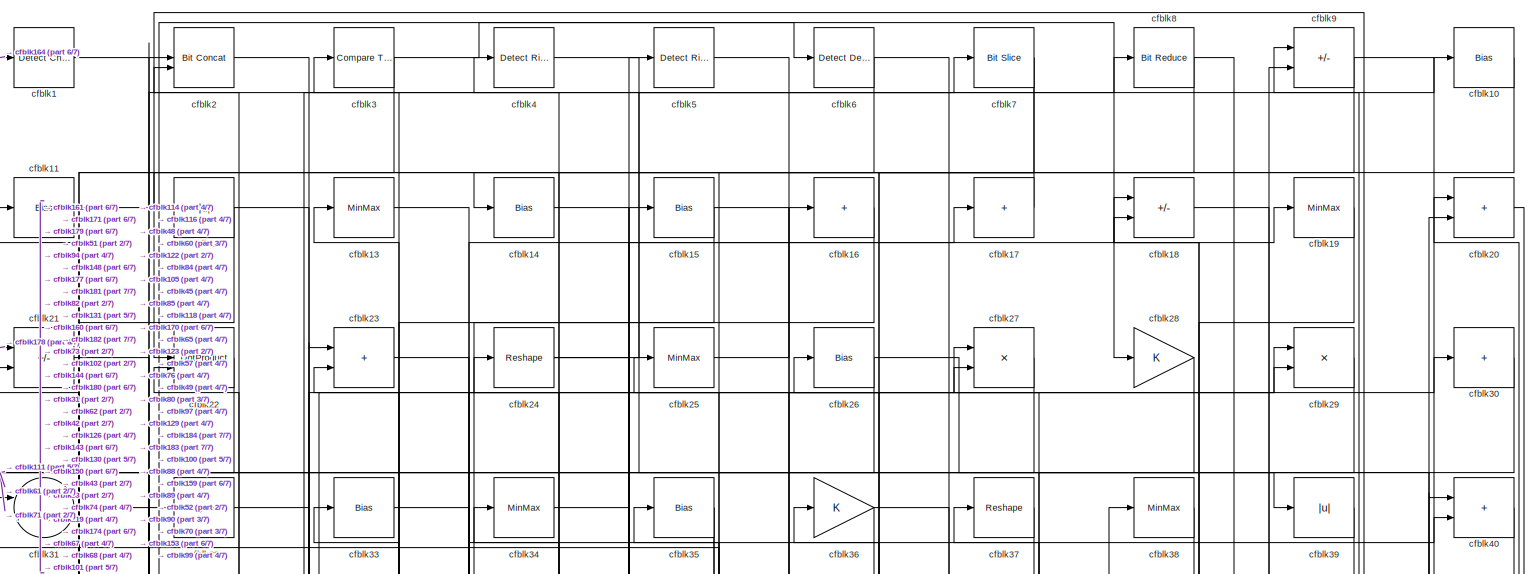
[diagram: root canvas - part 1/7, full width, top band]
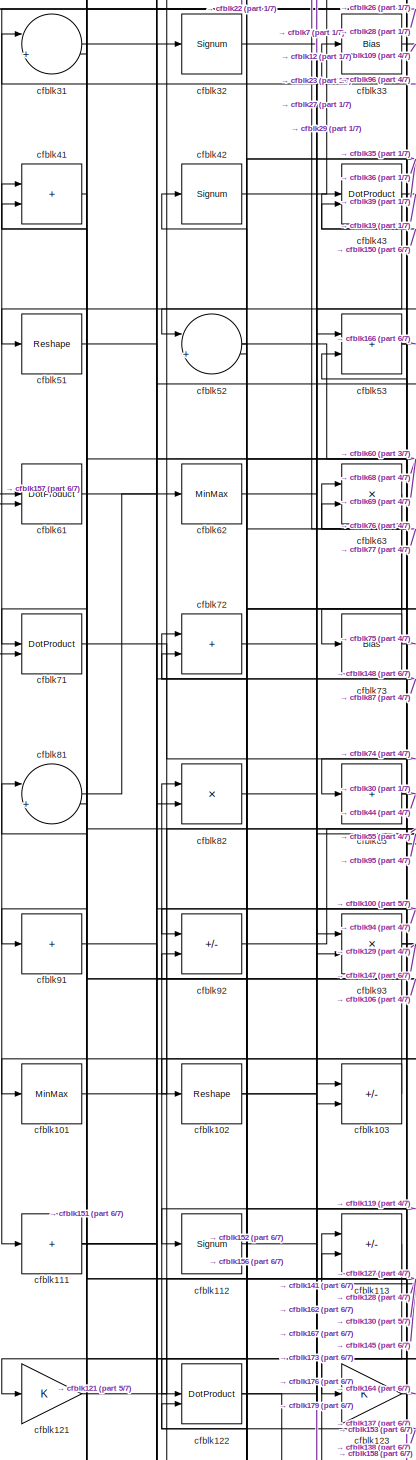
[diagram: root canvas - part 2/7, middle left region]
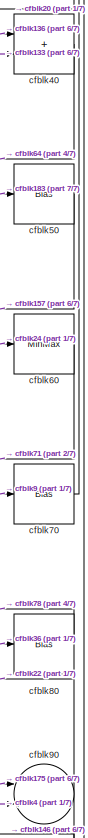
[diagram: root canvas - part 3/7, top right region]
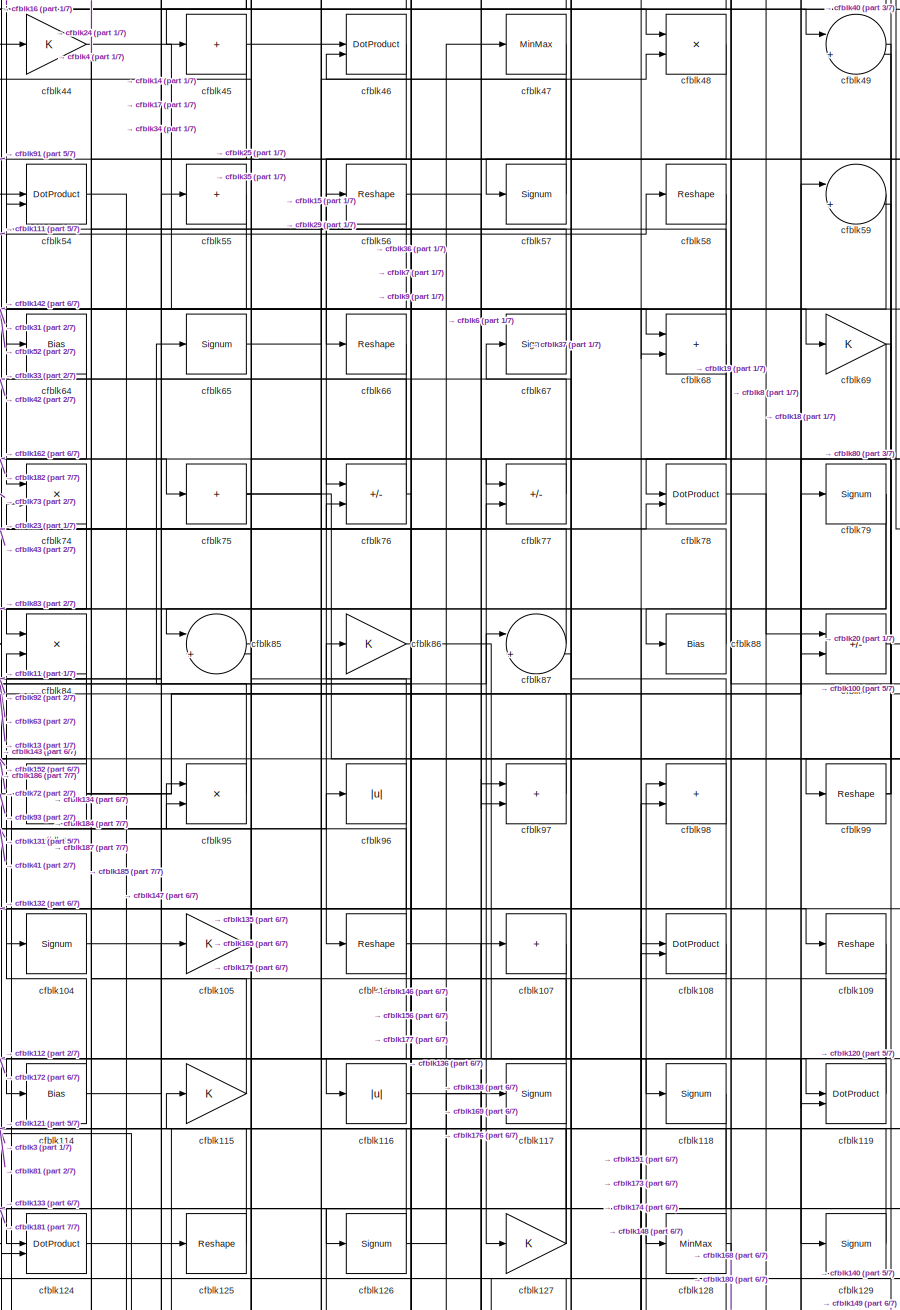
[diagram: root canvas - part 4/7, central region]
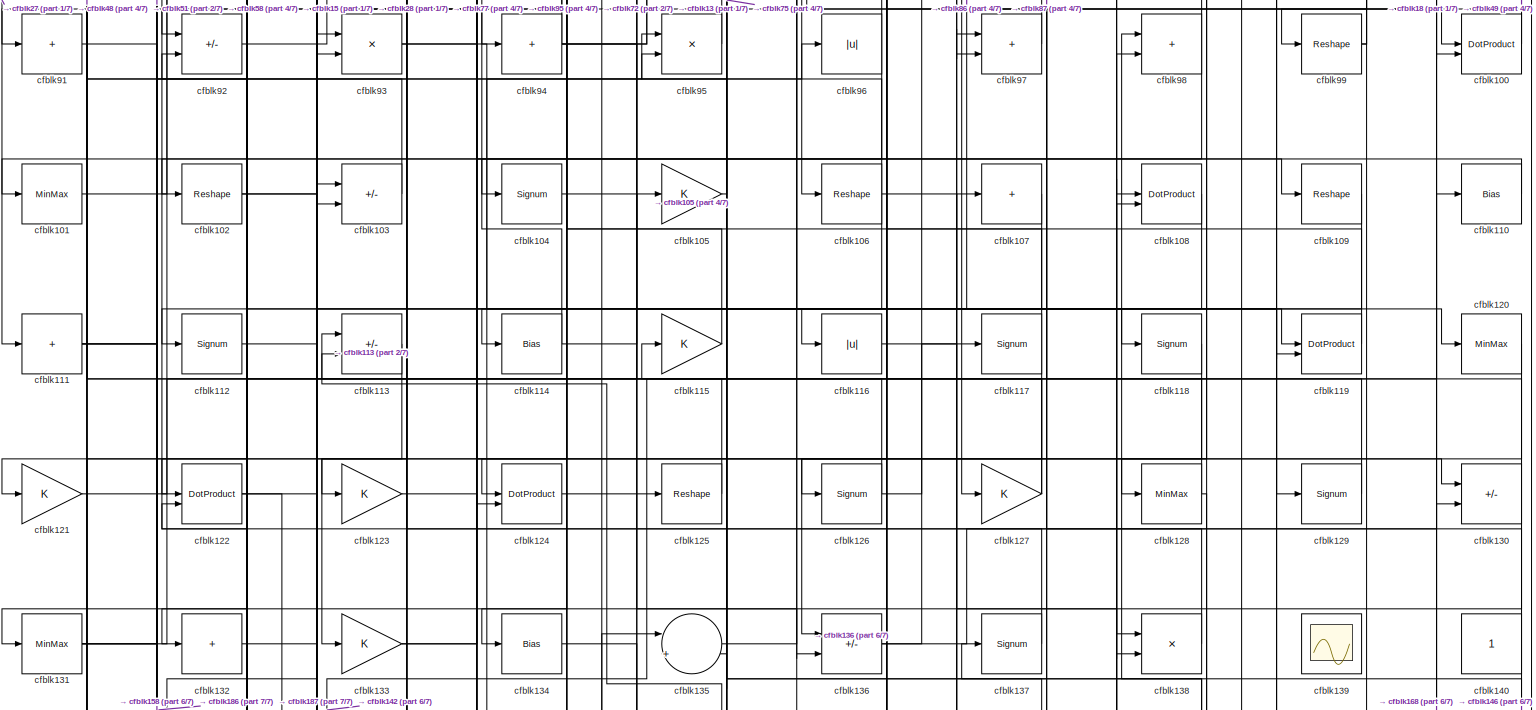
[diagram: root canvas - part 5/7, full width, middle band]
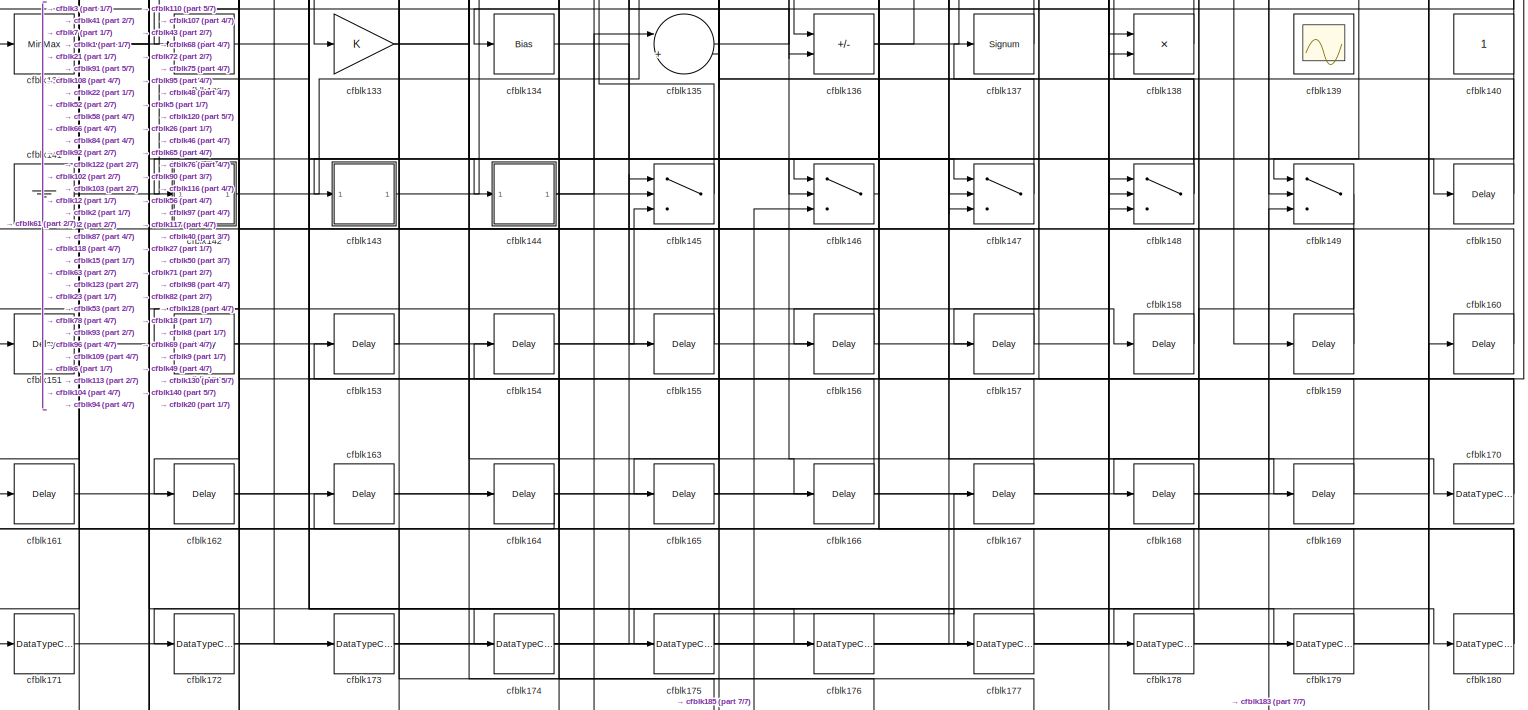
[diagram: root canvas - part 6/7, full width, bottom band]
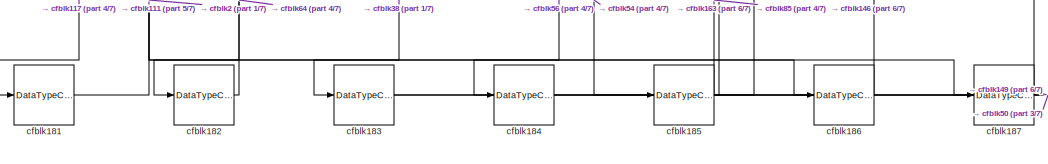
[diagram: root canvas - part 7/7, bottom center region]
MODEL slx_1782051ab085
KIND model
CONFIG AbsTol = auto
CONFIG EnableMultiTasking = off
CONFIG FixedStep = auto
CONFIG MaxStep = auto
CONFIG MinStep = auto
CONFIG RelTol = 1e-3
CONFIG SampleTimeConstraint = Unconstrained
CONFIG SolverName = VariableStepAuto
CONFIG StartTime = 0.0
CONFIG StopTime = 10.0
BLOCK [Reference] cfblk1  REF=simulink/Logic and Bit
Operations/Detect
Change
  LibrarySourceBlock = hdlsllib/Logic and Bit\nOperations/Detect\nChange
  SourceBlock = simulink/Logic and Bit\nOperations/Detect\nChange
  SourceType = Detect Change
BLOCK [Bias] cfblk10
  Bias = 0.0
  SaturateOnIntegerOverflow = off
BLOCK [DotProduct] cfblk100
  OutDataTypeStr = Inherit: Inherit via internal rule
BLOCK [MinMax] cfblk101
BLOCK [Reshape] cfblk102
BLOCK [Sum] cfblk103
  IconShape = rectangular
  Inputs = +-
BLOCK [Signum] cfblk104
BLOCK [Gain] cfblk105
BLOCK [Reshape] cfblk106
BLOCK [Sum] cfblk107
  IconShape = rectangular
  Inputs = +
BLOCK [DotProduct] cfblk108
  OutDataTypeStr = Inherit: Inherit via internal rule
BLOCK [Reshape] cfblk109
BLOCK [Bias] cfblk11
  Bias = 0.0
  SaturateOnIntegerOverflow = off
BLOCK [Bias] cfblk110
  Bias = 0.0
  SaturateOnIntegerOverflow = off
BLOCK [Sum] cfblk111
  IconShape = rectangular
  Inputs = +
BLOCK [Signum] cfblk112
BLOCK [Sum] cfblk113
  IconShape = rectangular
  Inputs = +-
BLOCK [Bias] cfblk114
  Bias = 0.0
  SaturateOnIntegerOverflow = off
BLOCK [Gain] cfblk115
BLOCK [Abs] cfblk116
  SaturateOnIntegerOverflow = off
BLOCK [Signum] cfblk117
BLOCK [Signum] cfblk118
BLOCK [DotProduct] cfblk119
  OutDataTypeStr = Inherit: Inherit via internal rule
BLOCK [Abs] cfblk12
  SaturateOnIntegerOverflow = off
BLOCK [MinMax] cfblk120
BLOCK [Gain] cfblk121
BLOCK [DotProduct] cfblk122
  OutDataTypeStr = Inherit: Inherit via internal rule
BLOCK [Gain] cfblk123
BLOCK [DotProduct] cfblk124
  OutDataTypeStr = Inherit: Inherit via internal rule
BLOCK [Reshape] cfblk125
BLOCK [Signum] cfblk126
BLOCK [Gain] cfblk127
BLOCK [MinMax] cfblk128
BLOCK [Signum] cfblk129
BLOCK [MinMax] cfblk13
BLOCK [Sum] cfblk130
  IconShape = rectangular
  Inputs = +-
BLOCK [MinMax] cfblk131
BLOCK [Sum] cfblk132
  IconShape = rectangular
  Inputs = +
BLOCK [Gain] cfblk133
BLOCK [Bias] cfblk134
  Bias = 0.0
  SaturateOnIntegerOverflow = off
BLOCK [Sum] cfblk135
  Inputs = |++
BLOCK [Sum] cfblk136
  IconShape = rectangular
  Inputs = +-
BLOCK [Signum] cfblk137
BLOCK [Product] cfblk138
  Inputs = */
  RndMeth = Zero
  SaturateOnIntegerOverflow = on
BLOCK [Scope] cfblk139
  Floating = on
  NumInputPorts = 1
  ScopeSpecificationString = Simulink.scopes.TimeScopeBlockCfg('CurrentConfiguration', extmgr.ConfigurationSet(extmgr.Configuration('Core','General UI',true,'FigureColor',[0.156862745098039 0.156862745098039 0.156862745098039]),extmgr.Configuration('Core','Source UI',true),extmgr.Configuration('Sources','WiredSimulink',true,'DataLoggingVariableName','ScopeData1','DataLoggingSaveFormat','StructureWithTime','DataLoggingLimitDat...<+2713ch>
BLOCK [Bias] cfblk14
  Bias = 0.0
  SaturateOnIntegerOverflow = off
BLOCK [Constant] cfblk140
  SampleTime = -1
BLOCK [Ground] cfblk141
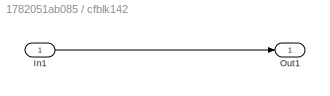
BLOCK [SubSystem] cfblk142
  LibrarySourceBlock = hdlsllib/Ports &\nSubsystems/Subsystem
BLOCK [Inport] cfblk142/In1
BLOCK [Outport] cfblk142/Out1
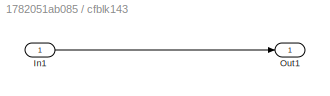
BLOCK [SubSystem] cfblk143
  LibrarySourceBlock = hdlsllib/Ports &\nSubsystems/Subsystem
BLOCK [Inport] cfblk143/In1
BLOCK [Outport] cfblk143/Out1
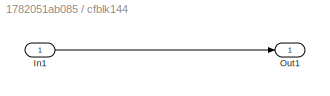
BLOCK [SubSystem] cfblk144
  LibrarySourceBlock = hdlsllib/Ports &\nSubsystems/Subsystem
BLOCK [Inport] cfblk144/In1
BLOCK [Outport] cfblk144/Out1
BLOCK [Switch] cfblk145
  InputSameDT = off
  SaturateOnIntegerOverflow = off
BLOCK [Switch] cfblk146
  InputSameDT = off
  SaturateOnIntegerOverflow = off
BLOCK [Switch] cfblk147
  InputSameDT = off
  SaturateOnIntegerOverflow = off
BLOCK [Switch] cfblk148
  InputSameDT = off
  SaturateOnIntegerOverflow = off
BLOCK [Switch] cfblk149
  InputSameDT = off
  SaturateOnIntegerOverflow = off
BLOCK [Bias] cfblk15
  Bias = 0.0
  SaturateOnIntegerOverflow = off
BLOCK [Delay] cfblk150
  InputPortMap = u0
  SampleTime = 1
BLOCK [Delay] cfblk151
  InputPortMap = u0
  SampleTime = 1
BLOCK [Delay] cfblk152
  InputPortMap = u0
  SampleTime = 1
BLOCK [Delay] cfblk153
  InputPortMap = u0
  SampleTime = 1
BLOCK [Delay] cfblk154
  InputPortMap = u0
  SampleTime = 1
BLOCK [Delay] cfblk155
  InputPortMap = u0
  SampleTime = 1
BLOCK [Delay] cfblk156
  InputPortMap = u0
  SampleTime = 1
BLOCK [Delay] cfblk157
  InputPortMap = u0
  SampleTime = 1
BLOCK [Delay] cfblk158
  InputPortMap = u0
  SampleTime = 1
BLOCK [Delay] cfblk159
  InputPortMap = u0
  SampleTime = 1
BLOCK [Sum] cfblk16
  IconShape = rectangular
  Inputs = +
BLOCK [Delay] cfblk160
  InputPortMap = u0
  SampleTime = 1
BLOCK [Delay] cfblk161
  InputPortMap = u0
  SampleTime = 1
BLOCK [Delay] cfblk162
  InputPortMap = u0
  SampleTime = 1
BLOCK [Delay] cfblk163
  InputPortMap = u0
  SampleTime = 1
BLOCK [Delay] cfblk164
  InputPortMap = u0
  SampleTime = 1
BLOCK [Delay] cfblk165
  InputPortMap = u0
  SampleTime = 1
BLOCK [Delay] cfblk166
  InputPortMap = u0
  SampleTime = 1
BLOCK [Delay] cfblk167
  InputPortMap = u0
  SampleTime = 1
BLOCK [Delay] cfblk168
  InputPortMap = u0
  SampleTime = 1
BLOCK [Delay] cfblk169
  InputPortMap = u0
  SampleTime = 1
BLOCK [Sum] cfblk17
  IconShape = rectangular
  Inputs = +
BLOCK [DataTypeConversion] cfblk170
  RndMeth = Floor
  SaturateOnIntegerOverflow = off
BLOCK [DataTypeConversion] cfblk171
  OutDataTypeStr = uint8
  RndMeth = Floor
  SaturateOnIntegerOverflow = off
BLOCK [DataTypeConversion] cfblk172
  OutDataTypeStr = uint8
  RndMeth = Floor
  SaturateOnIntegerOverflow = off
BLOCK [DataTypeConversion] cfblk173
  OutDataTypeStr = uint8
  RndMeth = Floor
  SaturateOnIntegerOverflow = off
BLOCK [DataTypeConversion] cfblk174
  OutDataTypeStr = uint8
  RndMeth = Floor
  SaturateOnIntegerOverflow = off
BLOCK [DataTypeConversion] cfblk175
  RndMeth = Floor
  SaturateOnIntegerOverflow = off
BLOCK [DataTypeConversion] cfblk176
  OutDataTypeStr = uint8
  RndMeth = Floor
  SaturateOnIntegerOverflow = off
BLOCK [DataTypeConversion] cfblk177
  OutDataTypeStr = uint8
  RndMeth = Floor
  SaturateOnIntegerOverflow = off
BLOCK [DataTypeConversion] cfblk178
  OutDataTypeStr = uint8
  RndMeth = Floor
  SaturateOnIntegerOverflow = off
BLOCK [DataTypeConversion] cfblk179
  OutDataTypeStr = uint8
  RndMeth = Floor
  SaturateOnIntegerOverflow = off
BLOCK [Sum] cfblk18
  IconShape = rectangular
  Inputs = +-
BLOCK [DataTypeConversion] cfblk180
  RndMeth = Floor
  SaturateOnIntegerOverflow = off
BLOCK [DataTypeConversion] cfblk181
  OutDataTypeStr = uint8
  RndMeth = Floor
  SaturateOnIntegerOverflow = off
BLOCK [DataTypeConversion] cfblk182
  OutDataTypeStr = uint8
  RndMeth = Floor
  SaturateOnIntegerOverflow = off
BLOCK [DataTypeConversion] cfblk183
  RndMeth = Floor
  SaturateOnIntegerOverflow = off
BLOCK [DataTypeConversion] cfblk184
  OutDataTypeStr = uint8
  RndMeth = Floor
  SaturateOnIntegerOverflow = off
BLOCK [DataTypeConversion] cfblk185
  RndMeth = Floor
  SaturateOnIntegerOverflow = off
BLOCK [DataTypeConversion] cfblk186
  OutDataTypeStr = uint8
  RndMeth = Floor
  SaturateOnIntegerOverflow = off
BLOCK [DataTypeConversion] cfblk187
  OutDataTypeStr = uint8
  RndMeth = Floor
  SaturateOnIntegerOverflow = off
BLOCK [MinMax] cfblk19
BLOCK [Reference] cfblk2  REF=hdlsllib/Logic and Bit
Operations/Bit Concat
  SourceBlock = hdlsllib/Logic and Bit\nOperations/Bit Concat
  SourceType = Bit Concat
BLOCK [Sum] cfblk20
  IconShape = rectangular
BLOCK [Sum] cfblk21
  IconShape = rectangular
  Inputs = +-
BLOCK [DotProduct] cfblk22
  OutDataTypeStr = Inherit: Inherit via internal rule
BLOCK [Sum] cfblk23
  IconShape = rectangular
BLOCK [Reshape] cfblk24
BLOCK [MinMax] cfblk25
BLOCK [Bias] cfblk26
  Bias = 0.0
  SaturateOnIntegerOverflow = off
BLOCK [Product] cfblk27
  Inputs = */
  RndMeth = Zero
  SaturateOnIntegerOverflow = on
BLOCK [Gain] cfblk28
BLOCK [Product] cfblk29
  Inputs = */
  RndMeth = Zero
  SaturateOnIntegerOverflow = on
BLOCK [Reference] cfblk3  REF=hdlsllib/Logic and Bit
Operations/Compare
To Constant
  SourceBlock = hdlsllib/Logic and Bit\nOperations/Compare\nTo Constant
  SourceType = Compare To Constant
BLOCK [Sum] cfblk30
  IconShape = rectangular
  Inputs = +
BLOCK [Sum] cfblk31
  Inputs = |++
BLOCK [Signum] cfblk32
BLOCK [Bias] cfblk33
  Bias = 0.0
  SaturateOnIntegerOverflow = off
BLOCK [MinMax] cfblk34
BLOCK [Bias] cfblk35
  Bias = 0.0
  SaturateOnIntegerOverflow = off
BLOCK [Gain] cfblk36
BLOCK [Reshape] cfblk37
BLOCK [MinMax] cfblk38
BLOCK [Abs] cfblk39
  SaturateOnIntegerOverflow = off
BLOCK [Reference] cfblk4  REF=hdlsllib/Logic and Bit
Operations/Detect Rise
Nonnegative
  SourceBlock = hdlsllib/Logic and Bit\nOperations/Detect Rise\nNonnegative
  SourceType = Detect Rise Nonnegative
BLOCK [Sum] cfblk40
  IconShape = rectangular
BLOCK [Sum] cfblk41
  IconShape = rectangular
BLOCK [Signum] cfblk42
BLOCK [DotProduct] cfblk43
  OutDataTypeStr = Inherit: Inherit via internal rule
BLOCK [Gain] cfblk44
BLOCK [Sum] cfblk45
  IconShape = rectangular
  Inputs = +
BLOCK [DotProduct] cfblk46
  OutDataTypeStr = Inherit: Inherit via internal rule
BLOCK [MinMax] cfblk47
BLOCK [Product] cfblk48
  Inputs = */
  RndMeth = Zero
  SaturateOnIntegerOverflow = on
BLOCK [Sum] cfblk49
  Inputs = |++
BLOCK [Reference] cfblk5  REF=hdlsllib/Logic and Bit
Operations/Detect Rise
Nonnegative
  SourceBlock = hdlsllib/Logic and Bit\nOperations/Detect Rise\nNonnegative
  SourceType = Detect Rise Nonnegative
BLOCK [Bias] cfblk50
  Bias = 0.0
  SaturateOnIntegerOverflow = off
BLOCK [Reshape] cfblk51
BLOCK [Sum] cfblk52
  Inputs = |++
BLOCK [Sum] cfblk53
  IconShape = rectangular
BLOCK [DotProduct] cfblk54
  OutDataTypeStr = Inherit: Inherit via internal rule
BLOCK [Sum] cfblk55
  IconShape = rectangular
  Inputs = +
BLOCK [Reshape] cfblk56
BLOCK [Signum] cfblk57
BLOCK [Reshape] cfblk58
BLOCK [Sum] cfblk59
  Inputs = |++
BLOCK [Reference] cfblk6  REF=simulink/Logic and Bit
Operations/Detect
Decrease
  LibrarySourceBlock = hdlsllib/Logic and Bit\nOperations/Detect\nDecrease
  SourceBlock = simulink/Logic and Bit\nOperations/Detect\nDecrease
  SourceType = Detect Decrease
BLOCK [MinMax] cfblk60
BLOCK [DotProduct] cfblk61
  OutDataTypeStr = Inherit: Inherit via internal rule
BLOCK [MinMax] cfblk62
BLOCK [Product] cfblk63
  Inputs = */
  RndMeth = Zero
  SaturateOnIntegerOverflow = on
BLOCK [Bias] cfblk64
  Bias = 0.0
  SaturateOnIntegerOverflow = off
BLOCK [Signum] cfblk65
BLOCK [Reshape] cfblk66
BLOCK [Signum] cfblk67
BLOCK [Sum] cfblk68
  IconShape = rectangular
BLOCK [Gain] cfblk69
BLOCK [Reference] cfblk7  REF=hdlsllib/Logic and Bit
Operations/Bit Slice
  SourceBlock = hdlsllib/Logic and Bit\nOperations/Bit Slice
  SourceType = Bit Slice
BLOCK [Bias] cfblk70
  Bias = 0.0
  SaturateOnIntegerOverflow = off
BLOCK [DotProduct] cfblk71
  OutDataTypeStr = Inherit: Inherit via internal rule
BLOCK [Sum] cfblk72
  IconShape = rectangular
BLOCK [Bias] cfblk73
  Bias = 0.0
  SaturateOnIntegerOverflow = off
BLOCK [Product] cfblk74
  Inputs = */
  RndMeth = Zero
  SaturateOnIntegerOverflow = on
BLOCK [Sum] cfblk75
  IconShape = rectangular
  Inputs = +
BLOCK [Sum] cfblk76
  IconShape = rectangular
  Inputs = +-
BLOCK [Sum] cfblk77
  IconShape = rectangular
  Inputs = +-
BLOCK [DotProduct] cfblk78
  OutDataTypeStr = Inherit: Inherit via internal rule
BLOCK [Signum] cfblk79
BLOCK [Reference] cfblk8  REF=hdlsllib/Logic and Bit
Operations/Bit Reduce
  SourceBlock = hdlsllib/Logic and Bit\nOperations/Bit Reduce
  SourceType = Bit Reduce
BLOCK [Bias] cfblk80
  Bias = 0.0
  SaturateOnIntegerOverflow = off
BLOCK [Sum] cfblk81
  Inputs = |++
BLOCK [Product] cfblk82
  Inputs = */
  RndMeth = Zero
  SaturateOnIntegerOverflow = on
BLOCK [Sum] cfblk83
  IconShape = rectangular
  Inputs = +
BLOCK [Product] cfblk84
  Inputs = */
  RndMeth = Zero
  SaturateOnIntegerOverflow = on
BLOCK [Sum] cfblk85
  Inputs = |++
BLOCK [Gain] cfblk86
BLOCK [Sum] cfblk87
  Inputs = |++
BLOCK [Bias] cfblk88
  Bias = 0.0
  SaturateOnIntegerOverflow = off
BLOCK [Sum] cfblk89
  IconShape = rectangular
  Inputs = +-
BLOCK [Sum] cfblk9
  IconShape = rectangular
  Inputs = +-
BLOCK [Sum] cfblk90
  Inputs = |++
BLOCK [Sum] cfblk91
  IconShape = rectangular
  Inputs = +
BLOCK [Sum] cfblk92
  IconShape = rectangular
  Inputs = +-
BLOCK [Product] cfblk93
  Inputs = */
  RndMeth = Zero
  SaturateOnIntegerOverflow = on
BLOCK [Sum] cfblk94
  IconShape = rectangular
  Inputs = +
BLOCK [Product] cfblk95
  Inputs = */
  RndMeth = Zero
  SaturateOnIntegerOverflow = on
BLOCK [Abs] cfblk96
  SaturateOnIntegerOverflow = off
BLOCK [Sum] cfblk97
  IconShape = rectangular
BLOCK [Sum] cfblk98
  IconShape = rectangular
BLOCK [Reshape] cfblk99
NET cfblk100:1 -> cfblk18:1, cfblk49:2
LINE cfblk101:1 -> cfblk15:1
NET cfblk102:1 -> cfblk179:1, cfblk27:1
LINE cfblk103:1 -> cfblk41:1
LINE cfblk104:1 -> cfblk136:2
LINE cfblk105:1 -> cfblk35:1
NET cfblk106:1 -> cfblk112:1, cfblk119:2, cfblk41:2
LINE cfblk107:1 -> cfblk175:1
LINE cfblk108:1 -> cfblk172:1
LINE cfblk109:1 -> cfblk134:1
LINE cfblk10:1 -> cfblk14:1
LINE cfblk110:1 -> cfblk101:1
NET cfblk111:1 -> cfblk186:1, cfblk187:1, cfblk58:1
LINE cfblk112:1 -> cfblk119:1
LINE cfblk113:1 -> cfblk121:1
NET cfblk114:1 -> cfblk17:1, cfblk84:2
LINE cfblk115:1 -> cfblk74:2
LINE cfblk116:1 -> cfblk169:1
NET cfblk117:1 -> cfblk181:1, cfblk56:1
LINE cfblk118:1 -> cfblk133:1
LINE cfblk119:1 -> cfblk34:1
LINE cfblk11:1 -> cfblk10:1
LINE cfblk120:1 -> cfblk136:1
LINE cfblk121:1 -> cfblk105:1
NET cfblk122:1 -> cfblk173:1, cfblk176:1
LINE cfblk123:1 -> cfblk164:1
LINE cfblk124:1 -> cfblk125:1
LINE cfblk125:1 -> cfblk115:1
NET cfblk126:1 -> cfblk3:1, cfblk47:1
NET cfblk127:1 -> cfblk81:1, cfblk86:1
NET cfblk128:1 -> cfblk168:1, cfblk81:2
LINE cfblk129:1 -> cfblk37:1
NET cfblk12:1 -> cfblk144:1, cfblk31:2
NET cfblk130:1 -> cfblk131:1, cfblk72:1
NET cfblk131:1 -> cfblk28:1, cfblk77:2, cfblk95:1
LINE cfblk132:1 -> cfblk87:1
NET cfblk133:1 -> cfblk40:2, cfblk78:2
LINE cfblk134:1 -> cfblk155:1
LINE cfblk135:1 -> cfblk48:2
NET cfblk136:1 -> cfblk117:1, cfblk40:1
LINE cfblk137:1 -> cfblk53:2
LINE cfblk138:1 -> cfblk82:1
LINE cfblk13:1 -> cfblk130:1
NET cfblk140:1 -> cfblk146:2, cfblk87:2
LINE cfblk141:1 -> cfblk103:2
LINE cfblk142/In1:1 -> cfblk142/Out1:1
LINE cfblk142:1 -> cfblk110:1
LINE cfblk143/In1:1 -> cfblk143/Out1:1
LINE cfblk143:1 -> cfblk96:1
LINE cfblk144/In1:1 -> cfblk144/Out1:1
NET cfblk144:1 -> cfblk135:1, cfblk145:2
LINE cfblk145:1 -> cfblk113:1
LINE cfblk146:1 -> cfblk65:1
LINE cfblk147:1 -> cfblk137:1
NET cfblk148:1 -> cfblk72:2, cfblk98:1
LINE cfblk149:1 -> cfblk178:1
LINE cfblk14:1 -> cfblk116:1
LINE cfblk150:1 -> cfblk43:2
LINE cfblk151:1 -> cfblk98:2
LINE cfblk152:1 -> cfblk92:2
LINE cfblk153:1 -> cfblk113:2
LINE cfblk154:1 -> cfblk145:3
LINE cfblk155:1 -> cfblk145:1
LINE cfblk156:1 -> cfblk52:2
LINE cfblk157:1 -> cfblk61:1
LINE cfblk158:1 -> cfblk63:2
LINE cfblk159:1 -> cfblk148:1
NET cfblk15:1 -> cfblk118:1, cfblk143:1
LINE cfblk160:1 -> cfblk22:2
LINE cfblk161:1 -> cfblk9:2
LINE cfblk162:1 -> cfblk53:1
LINE cfblk163:1 -> cfblk148:3
LINE cfblk164:1 -> cfblk1:1
LINE cfblk165:1 -> cfblk95:2
LINE cfblk166:1 -> cfblk122:2
LINE cfblk167:1 -> cfblk93:1
LINE cfblk168:1 -> cfblk130:2
LINE cfblk169:1 -> cfblk97:1
LINE cfblk16:1 -> cfblk74:1
NET cfblk170:1 -> cfblk26:1, cfblk27:2
LINE cfblk171:1 -> cfblk5:1
LINE cfblk172:1 -> cfblk160:1
LINE cfblk173:1 -> cfblk108:1
LINE cfblk174:1 -> cfblk108:2
NET cfblk175:1 -> cfblk167:1, cfblk90:1
LINE cfblk176:1 -> cfblk107:1
LINE cfblk177:1 -> cfblk46:2
LINE cfblk178:1 -> cfblk21:1
LINE cfblk179:1 -> cfblk21:2
LINE cfblk17:1 -> cfblk12:1
NET cfblk180:1 -> cfblk154:1, cfblk18:2, cfblk76:2
LINE cfblk181:1 -> cfblk2:1
LINE cfblk182:1 -> cfblk2:2
NET cfblk183:1 -> cfblk149:3, cfblk50:1
LINE cfblk184:1 -> cfblk38:1
NET cfblk185:1 -> cfblk146:3, cfblk163:1, cfblk85:2
LINE cfblk186:1 -> cfblk54:1
LINE cfblk187:1 -> cfblk54:2
LINE cfblk18:1 -> cfblk89:2
LINE cfblk19:1 -> cfblk88:1
LINE cfblk1:1 -> cfblk148:2
LINE cfblk20:1 -> cfblk153:1
LINE cfblk21:1 -> cfblk177:1
LINE cfblk22:1 -> cfblk61:2
LINE cfblk23:1 -> cfblk150:1
NET cfblk24:1 -> cfblk60:1, cfblk8:1
LINE cfblk25:1 -> cfblk16:1
NET cfblk26:1 -> cfblk39:1, cfblk82:2
LINE cfblk27:1 -> cfblk111:1
LINE cfblk28:1 -> cfblk71:2
LINE cfblk29:1 -> cfblk57:1
LINE cfblk2:1 -> cfblk180:1
LINE cfblk30:1 -> cfblk51:1
LINE cfblk31:1 -> cfblk69:1
LINE cfblk32:1 -> cfblk147:1
LINE cfblk33:1 -> cfblk109:1
LINE cfblk34:1 -> cfblk48:1
NET cfblk35:1 -> cfblk122:1, cfblk84:1
NET cfblk36:1 -> cfblk123:1, cfblk80:1
LINE cfblk37:1 -> cfblk97:2
LINE cfblk38:1 -> cfblk183:1
LINE cfblk39:1 -> cfblk52:1
NET cfblk3:1 -> cfblk161:1, cfblk6:1
LINE cfblk40:1 -> cfblk64:1
LINE cfblk41:1 -> cfblk151:1
LINE cfblk42:1 -> cfblk29:1
NET cfblk43:1 -> cfblk19:1, cfblk93:2
LINE cfblk44:1 -> cfblk68:2
NET cfblk45:1 -> cfblk104:1, cfblk46:1
LINE cfblk46:1 -> cfblk106:1
LINE cfblk47:1 -> cfblk66:1
LINE cfblk48:1 -> cfblk91:1
LINE cfblk49:1 -> cfblk149:1
LINE cfblk4:1 -> cfblk90:2
LINE cfblk50:1 -> cfblk157:1
LINE cfblk51:1 -> cfblk100:2
NET cfblk52:1 -> cfblk102:1, cfblk68:1
NET cfblk53:1 -> cfblk166:1, cfblk73:1
LINE cfblk54:1 -> cfblk185:1
LINE cfblk55:1 -> cfblk114:1
NET cfblk56:1 -> cfblk138:2, cfblk184:1
LINE cfblk57:1 -> cfblk36:1
LINE cfblk58:1 -> cfblk142:1
LINE cfblk59:1 -> cfblk85:1
LINE cfblk5:1 -> cfblk170:1
LINE cfblk60:1 -> cfblk71:1
LINE cfblk61:1 -> cfblk32:1
LINE cfblk62:1 -> cfblk23:1
LINE cfblk63:1 -> cfblk92:1
LINE cfblk64:1 -> cfblk182:1
LINE cfblk65:1 -> cfblk29:2
LINE cfblk66:1 -> cfblk162:1
LINE cfblk67:1 -> cfblk4:1
NET cfblk68:1 -> cfblk127:1, cfblk135:2, cfblk24:1
NET cfblk69:1 -> cfblk149:2, cfblk99:1
NET cfblk6:1 -> cfblk174:1, cfblk49:1
LINE cfblk70:1 -> cfblk20:1
LINE cfblk71:1 -> cfblk138:1
LINE cfblk72:1 -> cfblk94:1
NET cfblk73:1 -> cfblk75:1, cfblk7:1
LINE cfblk74:1 -> cfblk83:1
NET cfblk75:1 -> cfblk100:1, cfblk165:1, cfblk77:1
NET cfblk76:1 -> cfblk156:1, cfblk33:1
LINE cfblk77:1 -> cfblk42:1
LINE cfblk78:1 -> cfblk89:1
NET cfblk79:1 -> cfblk124:2, cfblk128:1
NET cfblk7:1 -> cfblk171:1, cfblk76:1
LINE cfblk80:1 -> cfblk78:1
LINE cfblk81:1 -> cfblk62:1
LINE cfblk82:1 -> cfblk103:1
NET cfblk83:1 -> cfblk30:1, cfblk44:1
LINE cfblk84:1 -> cfblk152:1
LINE cfblk85:1 -> cfblk25:1
LINE cfblk86:1 -> cfblk120:1
LINE cfblk87:1 -> cfblk43:1
LINE cfblk88:1 -> cfblk23:2
LINE cfblk89:1 -> cfblk20:2
NET cfblk8:1 -> cfblk159:1, cfblk45:1
NET cfblk90:1 -> cfblk146:1, cfblk22:1
LINE cfblk91:1 -> cfblk158:1
LINE cfblk92:1 -> cfblk55:1
NET cfblk93:1 -> cfblk129:1, cfblk147:2
NET cfblk94:1 -> cfblk11:1, cfblk147:3, cfblk59:1, cfblk79:1
LINE cfblk95:1 -> cfblk63:1
NET cfblk96:1 -> cfblk124:1, cfblk31:1
LINE cfblk97:1 -> cfblk13:1
NET cfblk98:1 -> cfblk132:1, cfblk67:1
NET cfblk99:1 -> cfblk59:2, cfblk9:1
NET cfblk9:1 -> cfblk126:1, cfblk70:1
note: NET lines group one-source signal fan-out (src -> all destinations, sorted); 1:1 wires keep LINE
